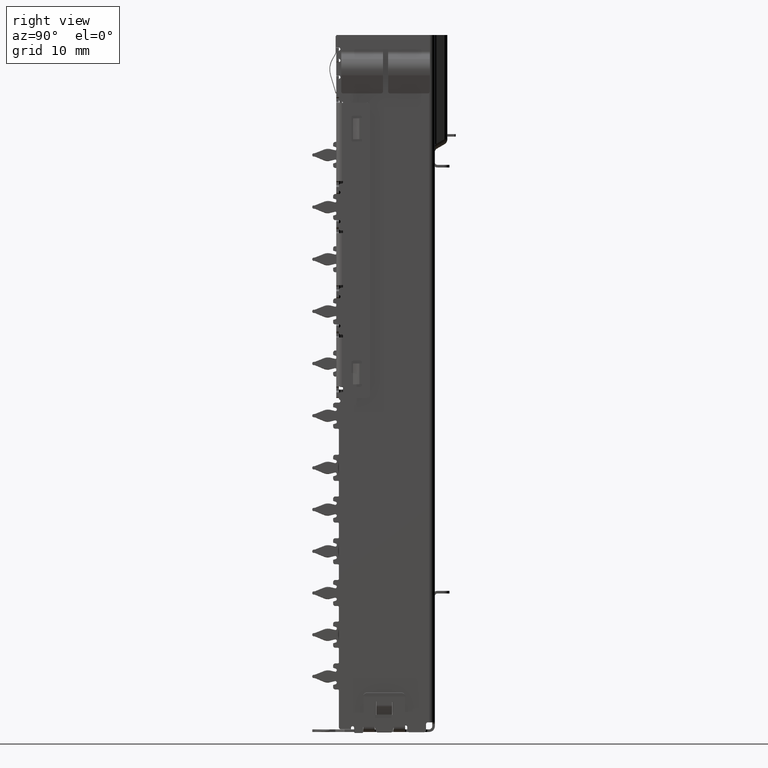
[diagram: clean part render]
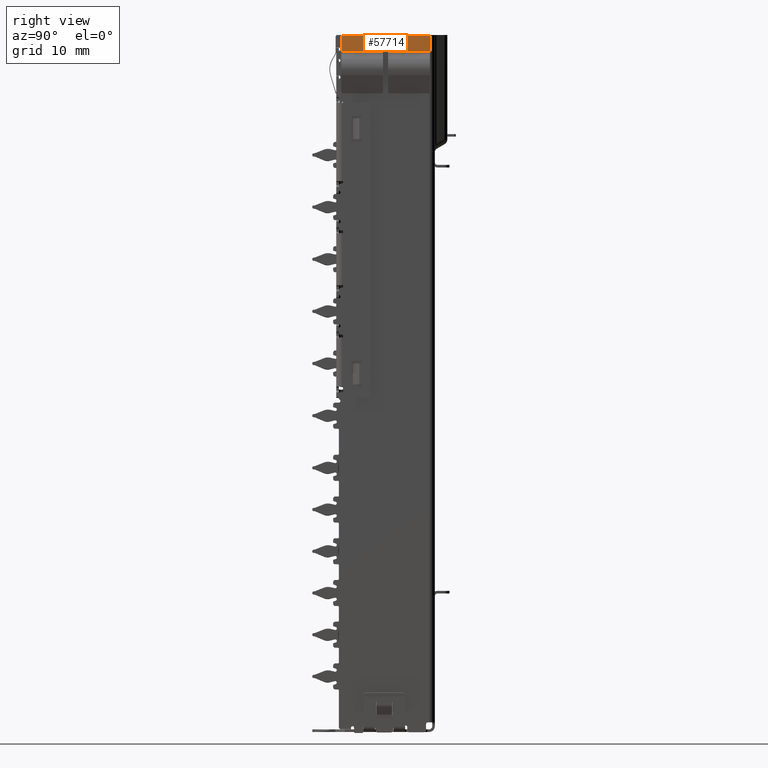
[diagram: same view with one face highlighted and labeled with its STEP entity id]
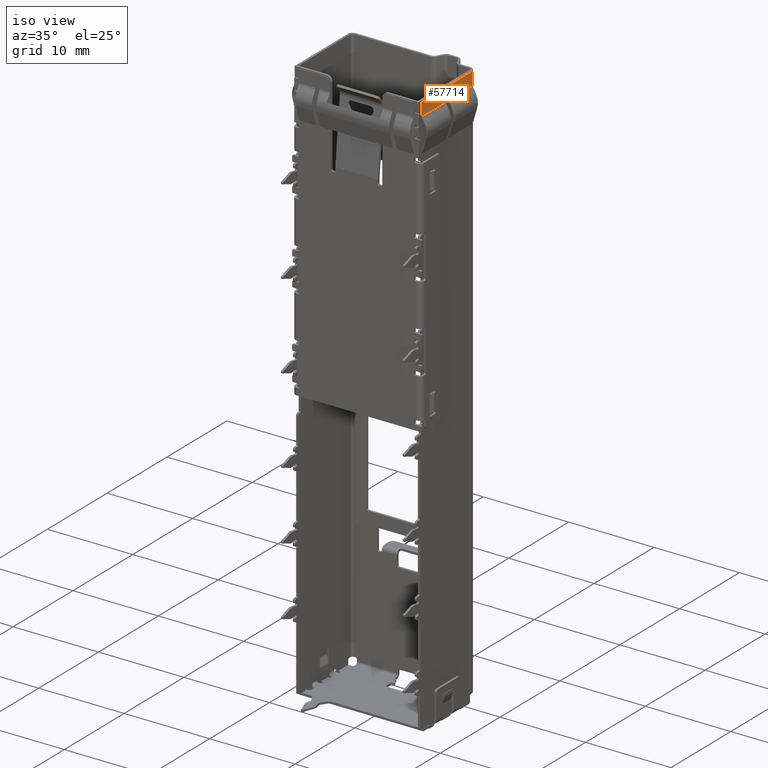
[diagram: same view with one face highlighted and labeled with its STEP entity id]
A machine part, right view. The second image highlights one B-rep face of the part: STEP entity #57714.
A second angle (iso view) of the same face is appended — the face is thin or edge-on in the first view.
In plain terms, the highlighted planar face has unit normal (-1, 0, 0).
Its self-contained STEP definition (entity closure, byte-faithful):
#2759 = EDGE_CURVE ( 'NONE', #54552, #7546, #34574, .T. ) ;
#2893 = VERTEX_POINT ( 'NONE', #6514 ) ;
#3006 = VECTOR ( 'NONE', #25422, 1000.000000000000000 ) ;
#4083 = CARTESIAN_POINT ( 'NONE',  ( 6.700000000000001066, 0.06000000000000015737, -1.499999999999999556 ) ) ;
#4213 = LINE ( 'NONE', #4083, #21626 ) ;
#4581 = LINE ( 'NONE', #21668, #41609 ) ;
#5393 = LINE ( 'NONE', #55323, #22861 ) ;
#5858 = EDGE_LOOP ( 'NONE', ( #51760, #55069, #38539, #42434, #50424, #44931, #53742, #53875 ) ) ;
#5904 = VERTEX_POINT ( 'NONE', #12499 ) ;
#6505 = PLANE ( 'NONE',  #56158 ) ;
#6514 = CARTESIAN_POINT ( 'NONE',  ( 0.2500000000000028311, 0.06000000000000015737, -1.449999999999999289 ) ) ;
#7546 = VERTEX_POINT ( 'NONE', #50084 ) ;
#9678 = LINE ( 'NONE', #11697, #43927 ) ;
#11052 = AXIS2_PLACEMENT_3D ( 'NONE', #31287, #40088, #36172 ) ;
#11503 = VERTEX_POINT ( 'NONE', #53004 ) ;
#11697 = CARTESIAN_POINT ( 'NONE',  ( 4.250000000000001776, 0.05999999999999929001, -1.499999999999999556 ) ) ;
#12499 = CARTESIAN_POINT ( 'NONE',  ( 0.2500000000000036637, 0.06000000000000015737, -1.500000000000000666 ) ) ;
#13103 = EDGE_CURVE ( 'NONE', #18579, #5904, #4213, .T. ) ;
#13381 = CARTESIAN_POINT ( 'NONE',  ( 6.700000000000001066, 0.05999999999999929001, 0.0000000000000000000 ) ) ;
#14597 = CARTESIAN_POINT ( 'NONE',  ( 4.250000000000001776, 0.06000000000000015737, -1.499999999999999556 ) ) ;
#18579 = VERTEX_POINT ( 'NONE', #14597 ) ;
#19260 = VECTOR ( 'NONE', #54568, 1000.000000000000000 ) ;
#20049 = CARTESIAN_POINT ( 'NONE',  ( -0.2499999999999985012, 0.05999999999999929001, -1.449999999999999067 ) ) ;
#21263 = DIRECTION ( 'NONE',  ( 0.0000000000000000000, -6.162975822039154730E-33, -1.000000000000000000 ) ) ;
#21626 = VECTOR ( 'NONE', #30816, 1000.000000000000000 ) ;
#21668 = CARTESIAN_POINT ( 'NONE',  ( 0.2500000000000028311, 0.06000000000000015737, -1.499999999999998890 ) ) ;
#22861 = VECTOR ( 'NONE', #32460, 1000.000000000000000 ) ;
#25046 = DIRECTION ( 'NONE',  ( 2.888894916580853437E-33, -1.000000000000000000, 6.162975822039154730E-33 ) ) ;
#25246 = EDGE_CURVE ( 'NONE', #5904, #2893, #4581, .T. ) ;
#25422 = DIRECTION ( 'NONE',  ( -2.037560944591367436E-16, -6.162975822039154730E-33, -1.000000000000000000 ) ) ;
#27248 = VERTEX_POINT ( 'NONE', #20049 ) ;
#29039 = EDGE_CURVE ( 'NONE', #11503, #31310, #37765, .T. ) ;
#30120 = DIRECTION ( 'NONE',  ( 2.037560944591367436E-16, 6.162975822039154730E-33, 1.000000000000000000 ) ) ;
#30816 = DIRECTION ( 'NONE',  ( -1.000000000000000000, 2.888894916580853780E-33, 0.0000000000000000000 ) ) ;
#31003 = FACE_OUTER_BOUND ( 'NONE', #5858, .T. ) ;
#31287 = CARTESIAN_POINT ( 'NONE',  ( 1.734723475976807094E-15, 0.05999999999999929001, -1.449999999999999289 ) ) ;
#31310 = VERTEX_POINT ( 'NONE', #45738 ) ;
#31930 = CARTESIAN_POINT ( 'NONE',  ( 6.700000000000001066, 0.06000000000000015737, -1.499999999999999556 ) ) ;
#32128 = VECTOR ( 'NONE', #35062, 1000.000000000000000 ) ;
#32460 = DIRECTION ( 'NONE',  ( 2.037560944591367436E-16, 6.162975822039154730E-33, 1.000000000000000000 ) ) ;
#34574 = LINE ( 'NONE', #31930, #19260 ) ;
#35062 = DIRECTION ( 'NONE',  ( -1.000000000000000000, 2.888894916580853780E-33, 0.0000000000000000000 ) ) ;
#36172 = DIRECTION ( 'NONE',  ( 0.0000000000000000000, 0.0000000000000000000, -1.000000000000000000 ) ) ;
#37765 = LINE ( 'NONE', #13381, #32128 ) ;
#38539 = ORIENTED_EDGE ( 'NONE', *, *, #13103, .T. ) ;
#39217 = EDGE_CURVE ( 'NONE', #2893, #27248, #56208, .T. ) ;
#40088 = DIRECTION ( 'NONE',  ( 2.888894916580853437E-33, -1.000000000000000000, -6.162975822039154730E-33 ) ) ;
#41609 = VECTOR ( 'NONE', #30120, 1000.000000000000000 ) ;
#42434 = ORIENTED_EDGE ( 'NONE', *, *, #25246, .T. ) ;
#43927 = VECTOR ( 'NONE', #52695, 1000.000000000000000 ) ;
#44931 = ORIENTED_EDGE ( 'NONE', *, *, #57791, .T. ) ;
#45738 = CARTESIAN_POINT ( 'NONE',  ( -4.249999999999998224, 0.06000000000001316780, 0.0000000000000000000 ) ) ;
#46134 = CARTESIAN_POINT ( 'NONE',  ( -0.2499999999999967526, 0.06000000000000015737, -1.500000000000000444 ) ) ;
#46767 = CARTESIAN_POINT ( 'NONE',  ( 6.700000000000001066, 0.06000000000000015737, -1.499999999999999556 ) ) ;
#48445 = LINE ( 'NONE', #52589, #3006 ) ;
#50084 = CARTESIAN_POINT ( 'NONE',  ( -4.249999999999996447, 0.06000000000000449418, -1.499999999999997558 ) ) ;
#50424 = ORIENTED_EDGE ( 'NONE', *, *, #39217, .T. ) ;
#51377 = EDGE_CURVE ( 'NONE', #11503, #18579, #9678, .T. ) ;
#51760 = ORIENTED_EDGE ( 'NONE', *, *, #29039, .F. ) ;
#52282 = EDGE_CURVE ( 'NONE', #7546, #31310, #5393, .T. ) ;
#52589 = CARTESIAN_POINT ( 'NONE',  ( -0.2499999999999976130, 0.06000000000000015737, -1.499999999999998668 ) ) ;
#52695 = DIRECTION ( 'NONE',  ( -2.037560944591367436E-16, -6.162975822039154730E-33, -1.000000000000000000 ) ) ;
#53004 = CARTESIAN_POINT ( 'NONE',  ( 4.250000000000001776, 0.06000000000000709627, 0.0000000000000000000 ) ) ;
#53742 = ORIENTED_EDGE ( 'NONE', *, *, #2759, .T. ) ;
#53875 = ORIENTED_EDGE ( 'NONE', *, *, #52282, .T. ) ;
#54552 = VERTEX_POINT ( 'NONE', #46134 ) ;
#54568 = DIRECTION ( 'NONE',  ( -1.000000000000000000, 2.888894916580853780E-33, 0.0000000000000000000 ) ) ;
#55069 = ORIENTED_EDGE ( 'NONE', *, *, #51377, .T. ) ;
#55323 = CARTESIAN_POINT ( 'NONE',  ( -4.249999999999996447, 0.06000000000000362682, -1.499999999999996003 ) ) ;
#56158 = AXIS2_PLACEMENT_3D ( 'NONE', #46767, #25046, #21263 ) ;
#56208 = CIRCLE ( 'NONE', #11052, 0.2500000000000002220 ) ;
#57714 = ADVANCED_FACE ( 'NONE', ( #31003 ), #6505, .F. ) ;
#57791 = EDGE_CURVE ( 'NONE', #27248, #54552, #48445, .T. ) ;